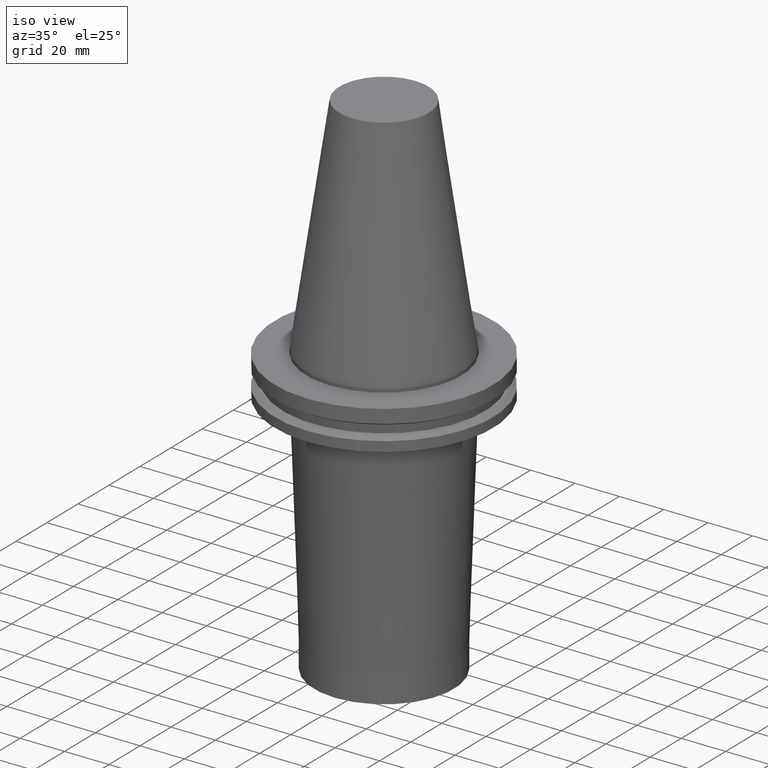
[diagram: clean part render]
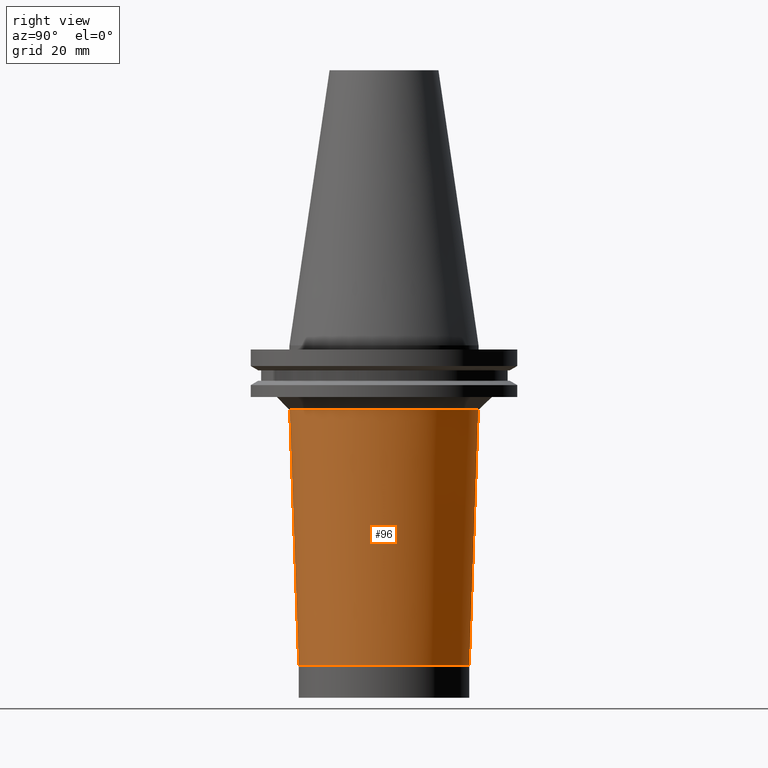
[diagram: tour spotlight — one face highlighted and labeled with its STEP entity id]
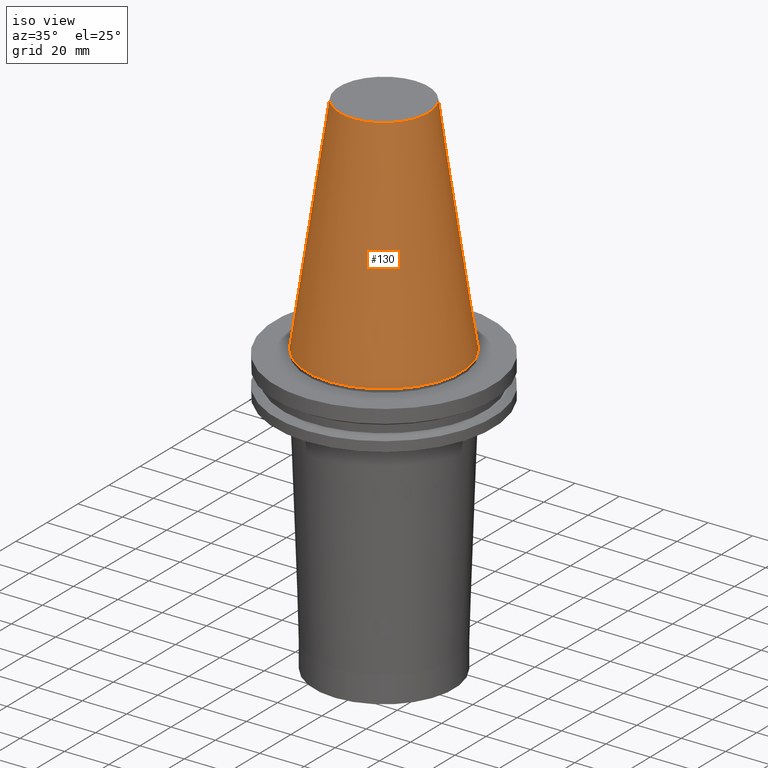
[diagram: tour spotlight — one face highlighted and labeled with its STEP entity id]
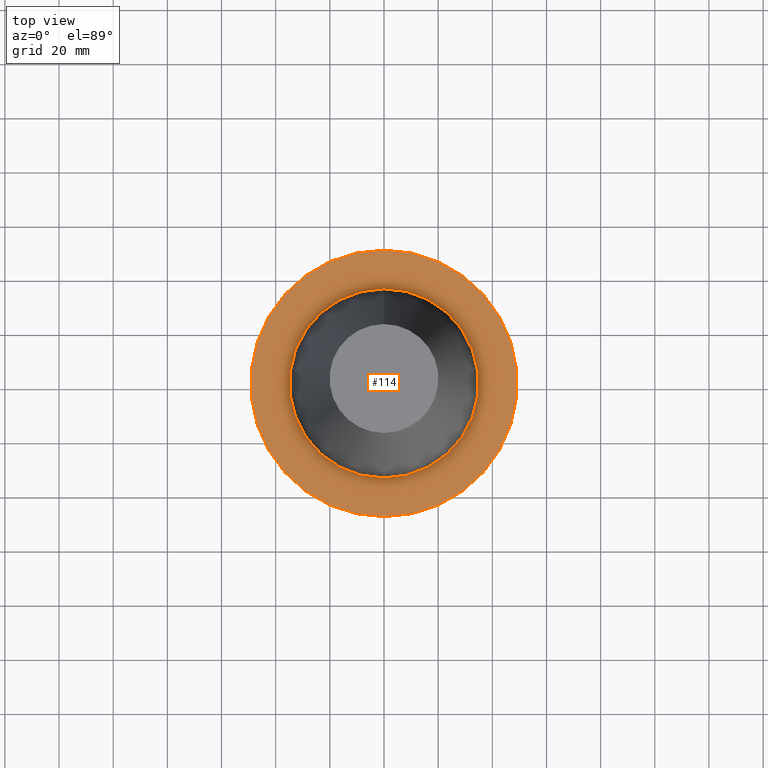
[diagram: tour spotlight — one face highlighted and labeled with its STEP entity id]
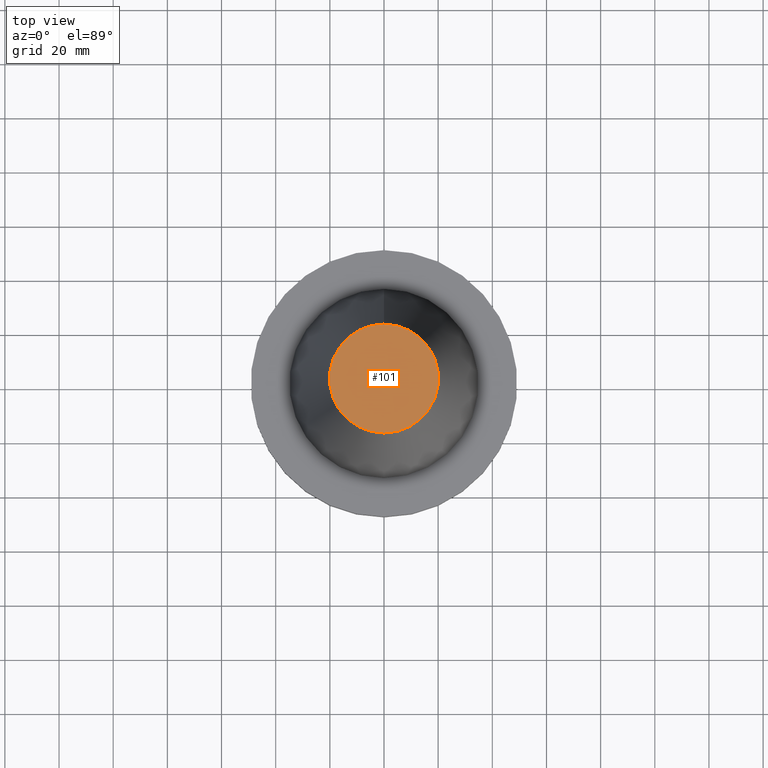
[diagram: tour spotlight — one face highlighted and labeled with its STEP entity id]
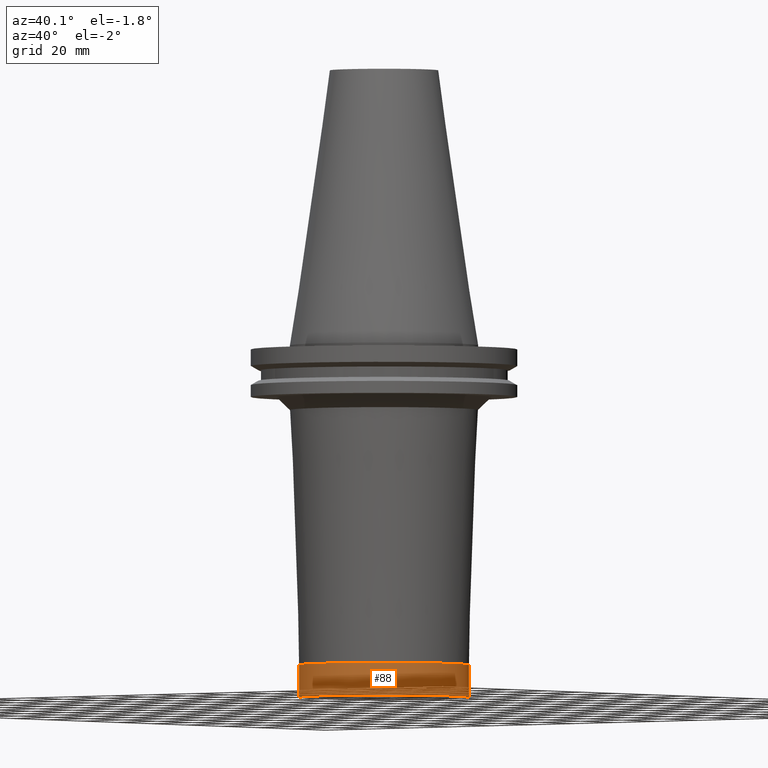
[diagram: tour spotlight — one face highlighted and labeled with its STEP entity id]
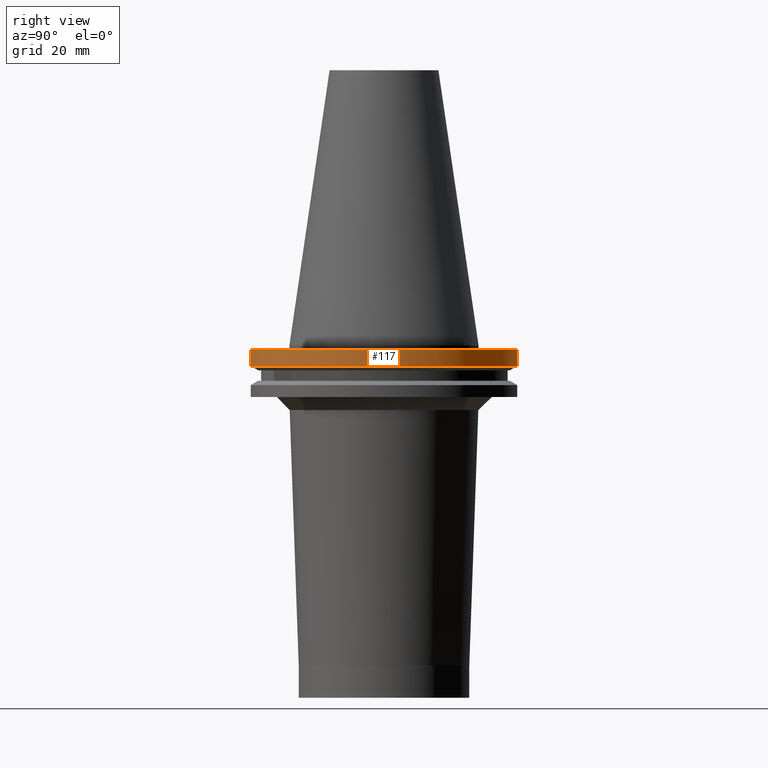
[diagram: tour spotlight — one face highlighted and labeled with its STEP entity id]
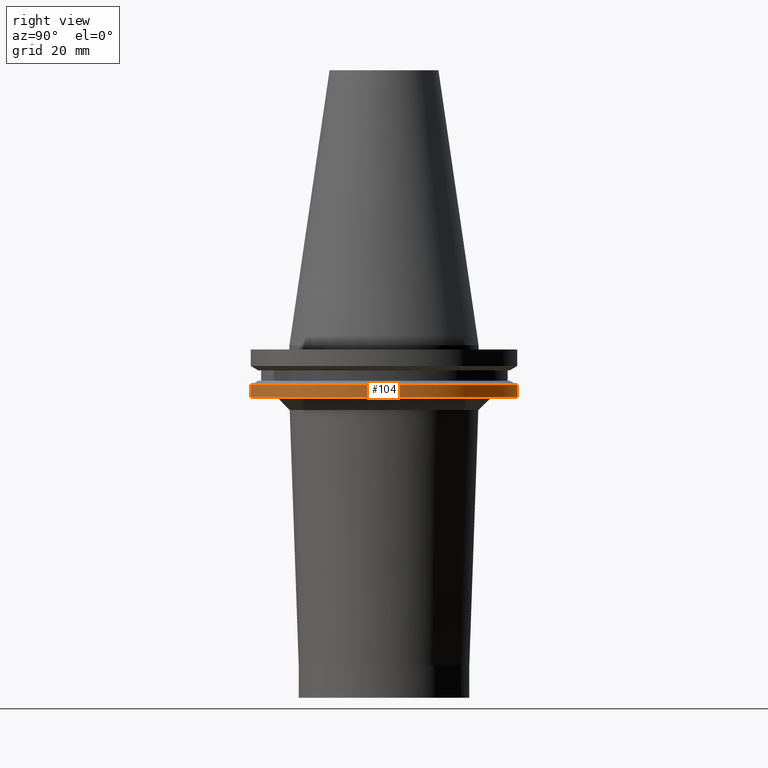
[diagram: tour spotlight — one face highlighted and labeled with its STEP entity id]
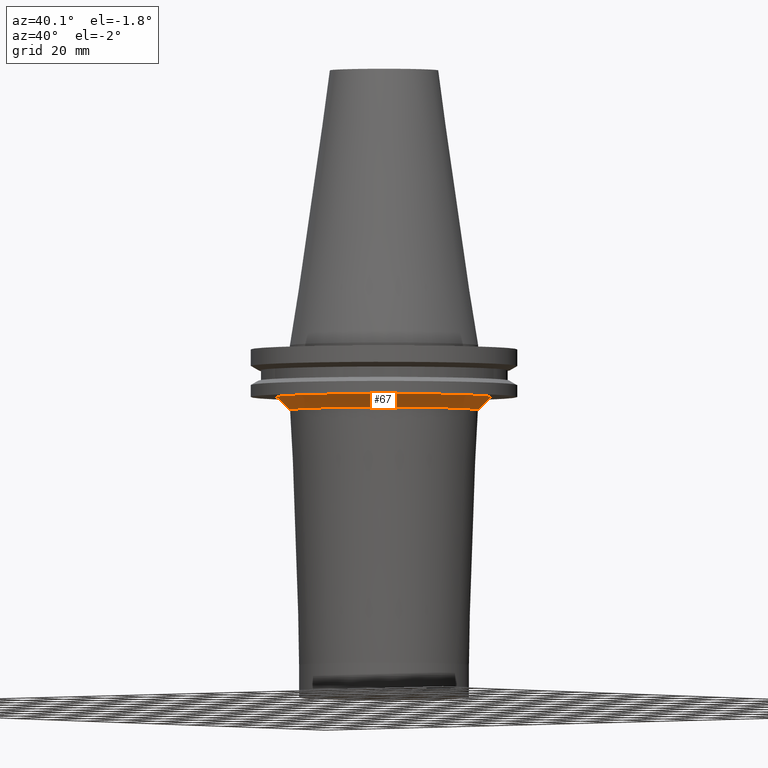
[diagram: tour spotlight — one face highlighted and labeled with its STEP entity id]
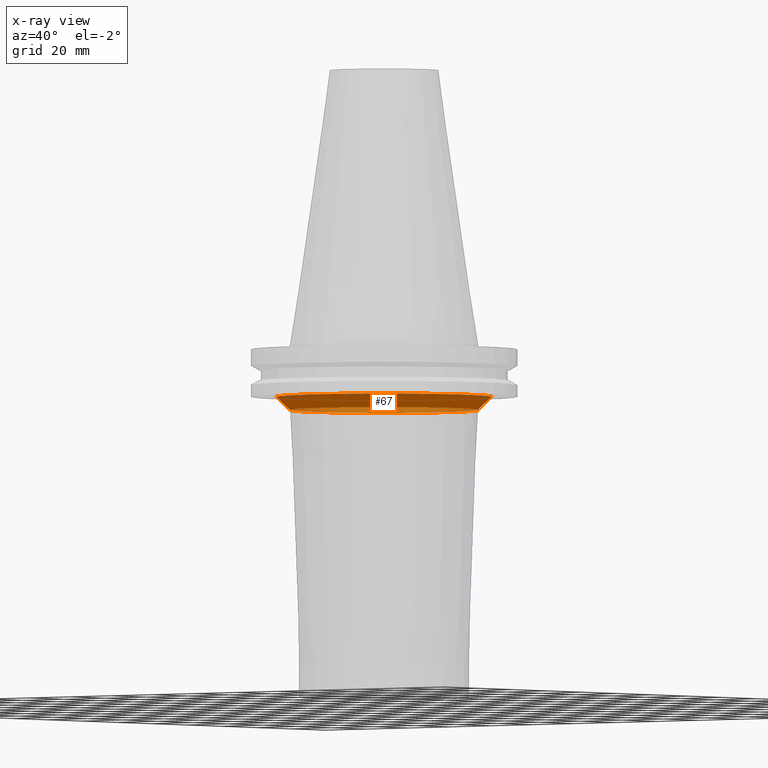
[diagram: x-ray of the same camera — body ghosted, this tour face saturated]
A machine part: a face-by-face anatomy tour. The part has 16 B-rep faces; the first image is the clean iso view, then the 8 largest visible faces are spotlighted one at a time (largest first), each with its STEP entity span.

Face 1 — right view, entity #96. In plain terms, the highlighted conical surface has half-angle 2.024 deg.
Definition (entity closure, byte-faithful):
#59=EDGE_CURVE('Unnamed[1]',#158,#158,#159,.T.);
#90=EDGE_CURVE('Unnamed[1]',#206,#206,#207,.T.);
#96=ADVANCED_FACE('Unnamed[1]',(#215,#216),#217,.T.);
#158=VERTEX_POINT('',#292);
#159=CIRCLE('',#293,34.8299076510828);
#206=VERTEX_POINT('',#353);
#207=CIRCLE('',#354,31.5);
#215=FACE_BOUND('',#364,.T.);
#216=FACE_BOUND('',#365,.T.);
#217=CONICAL_SURFACE('',#366,33.1649538255414,0.0353246636794449);
#292=CARTESIAN_POINT('',(1.46182496598705E-015,34.8299076510828,-23.8734134120112));
#293=AXIS2_PLACEMENT_3D('',#448,#449,#450);
#353=CARTESIAN_POINT('',(7.23153934897916E-015,31.4999999999999,-118.100000000229));
#354=AXIS2_PLACEMENT_3D('',#501,#502,#503);
#364=EDGE_LOOP('',(#511));
#365=EDGE_LOOP('',(#512));
#366=AXIS2_PLACEMENT_3D('',#513,#514,#515);
#448=CARTESIAN_POINT('',(1.46182496598705E-015,-1.1154871649973E-014,-23.8734134120111));
#449=DIRECTION('',(6.12323399573677E-017,-1.22476298162836E-016,-1.0));
#450=DIRECTION('',(2.6723575950577E-033,1.0,-1.22476298162836E-016));
#501=CARTESIAN_POINT('',(7.23153934897916E-015,-2.26953951638179E-014,-118.100000000229));
#502=DIRECTION('',(6.12323399573676E-017,-1.22476298162836E-016,-1.0));
#503=DIRECTION('',(2.6723575950577E-033,1.0,-1.22476298162836E-016));
#511=ORIENTED_EDGE('',*,*,#90,.F.);
#512=ORIENTED_EDGE('',*,*,#59,.T.);
#513=CARTESIAN_POINT('',(4.3466821574831E-015,-1.69251334068955E-014,-70.9867067061202));
#514=DIRECTION('',(-6.12323399573676E-017,1.22476298162836E-016,1.0));
#515=DIRECTION('',(2.6723575950577E-033,1.0,-1.22476298162836E-016));

Face 2 — iso view, entity #130. In plain terms, the highlighted conical surface has half-angle 8.297 deg.
Definition (entity closure, byte-faithful):
#98=EDGE_CURVE('Unnamed[1]',#219,#219,#220,.T.);
#106=EDGE_CURVE('Unnamed[1]',#231,#231,#232,.T.);
#130=ADVANCED_FACE('Unnamed[1]',(#267,#268),#269,.T.);
#219=VERTEX_POINT('',#369);
#220=CIRCLE('',#370,34.925);
#231=VERTEX_POINT('',#384);
#232=CIRCLE('',#385,20.1083333297217);
#267=FACE_BOUND('',#428,.T.);
#268=FACE_BOUND('',#429,.T.);
#269=CONICAL_SURFACE('',#430,27.5166666648608,0.144812498273746);
#369=CARTESIAN_POINT('',(-4.30483861169435E-031,34.925,4.27707894602213E-015));
#370=AXIS2_PLACEMENT_3D('',#516,#517,#518);
#384=CARTESIAN_POINT('',(-6.22120573966855E-015,20.1083333297217,101.6));
#385=AXIS2_PLACEMENT_3D('',#530,#531,#532);
#428=EDGE_LOOP('',(#568));
#429=EDGE_LOOP('',(#569));
#430=AXIS2_PLACEMENT_3D('',#570,#571,#572);
#516=CARTESIAN_POINT('',(1.01454222052553E-046,-8.23094435075886E-015,-1.00799996531168E-030));
#517=DIRECTION('',(6.12323399573676E-017,-1.22476298162836E-016,-1.0));
#518=DIRECTION('',(2.6723575950577E-033,1.0,-1.22476298162836E-016));
#530=CARTESIAN_POINT('',(-6.22120573966855E-015,4.21264754258532E-015,101.6));
#531=DIRECTION('',(6.12323399573677E-017,-1.22476298162836E-016,-1.0));
#532=DIRECTION('',(2.6723575950577E-033,1.0,-1.22476298162836E-016));
#568=ORIENTED_EDGE('',*,*,#98,.F.);
#569=ORIENTED_EDGE('',*,*,#106,.T.);
#570=CARTESIAN_POINT('',(-3.11060286983428E-015,-2.00914840408677E-015,50.8));
#571=DIRECTION('',(6.12323399573677E-017,-1.22476298162836E-016,-1.0));
#572=DIRECTION('',(2.6723575950577E-033,1.0,-1.22476298162836E-016));

Face 3 — top view, entity #114. In plain terms, the highlighted planar face has unit normal (-0, -0, 1).
Definition (entity closure, byte-faithful):
#61=EDGE_CURVE('Unnamed[1]',#161,#161,#162,.T.);
#114=ADVANCED_FACE('Unnamed[1]',(#243,#244),#245,.T.);
#135=EDGE_CURVE('Unnamed[1]',#276,#276,#277,.T.);
#161=VERTEX_POINT('',#296);
#162=CIRCLE('',#297,34.925);
#243=FACE_OUTER_BOUND('',#399,.T.);
#244=FACE_BOUND('',#400,.T.);
#245=PLANE('',#401);
#276=VERTEX_POINT('',#439);
#277=CIRCLE('',#440,49.2125);
#296=CARTESIAN_POINT('',(9.18485099360511E-017,34.925,-1.5));
#297=AXIS2_PLACEMENT_3D('',#451,#452,#453);
#399=EDGE_LOOP('',(#543));
#400=EDGE_LOOP('',(#544));
#401=AXIS2_PLACEMENT_3D('',#545,#546,#547);
#439=CARTESIAN_POINT('',(9.18485099360509E-017,49.2125,-1.49999999999999));
#440=AXIS2_PLACEMENT_3D('',#579,#580,#581);
#451=CARTESIAN_POINT('',(9.18485099360515E-017,-8.41465879800311E-015,-1.5));
#452=DIRECTION('',(6.12323399573676E-017,-1.22476298162836E-016,-1.0));
#453=DIRECTION('',(2.6723575950577E-033,1.0,-1.22476298162836E-016));
#543=ORIENTED_EDGE('',*,*,#135,.F.);
#544=ORIENTED_EDGE('',*,*,#61,.T.);
#545=CARTESIAN_POINT('',(9.1848509936051E-017,42.06875,-1.49999999999999));
#546=DIRECTION('',(-6.12323399573677E-017,-1.22464679914735E-016,1.0));
#547=DIRECTION('',(1.23259516440783E-032,-1.0,-1.22464679914735E-016));
#579=CARTESIAN_POINT('',(9.18485099360515E-017,-8.41465879800311E-015,-1.5));
#580=DIRECTION('',(6.12323399573677E-017,-1.22476298162836E-016,-1.0));
#581=DIRECTION('',(2.6723575950577E-033,1.0,-1.22476298162836E-016));

Face 4 — top view, entity #101. In plain terms, the highlighted planar face has unit normal (-0, -0, 1).
Definition (entity closure, byte-faithful):
#101=ADVANCED_FACE('Unnamed[1]',(#223),#224,.T.);
#106=EDGE_CURVE('Unnamed[1]',#231,#231,#232,.T.);
#223=FACE_OUTER_BOUND('',#374,.T.);
#224=PLANE('',#375);
#231=VERTEX_POINT('',#384);
#232=CIRCLE('',#385,20.1083333297217);
#374=EDGE_LOOP('',(#520));
#375=AXIS2_PLACEMENT_3D('',#521,#522,#523);
#384=CARTESIAN_POINT('',(-6.22120573966855E-015,20.1083333297217,101.6));
#385=AXIS2_PLACEMENT_3D('',#530,#531,#532);
#520=ORIENTED_EDGE('',*,*,#106,.F.);
#521=CARTESIAN_POINT('',(-6.22120573966855E-015,10.0541666648608,101.6));
#522=DIRECTION('',(-6.12323399573677E-017,-1.22464679914735E-016,1.0));
#523=DIRECTION('',(1.23259516440783E-032,-1.0,-1.22464679914735E-016));
#530=CARTESIAN_POINT('',(-6.22120573966855E-015,4.21264754258532E-015,101.6));
#531=DIRECTION('',(6.12323399573677E-017,-1.22476298162836E-016,-1.0));
#532=DIRECTION('',(2.6723575950577E-033,1.0,-1.22476298162836E-016));

Face 5 — auxiliary view, entity #88. In plain terms, the highlighted cylindrical surface (bore or boss wall) has radius 31.5 mm, axis along (0, -0, -1).
Definition (entity closure, byte-faithful):
#73=EDGE_CURVE('Unnamed[1]',#179,#179,#180,.T.);
#88=ADVANCED_FACE('Unnamed[1]',(#202,#203),#204,.T.);
#90=EDGE_CURVE('Unnamed[1]',#206,#206,#207,.T.);
#179=VERTEX_POINT('',#319);
#180=CIRCLE('',#320,31.4999999999999);
#202=FACE_BOUND('',#348,.T.);
#203=FACE_BOUND('',#349,.T.);
#204=CYLINDRICAL_SURFACE('',#350,31.4999999999999);
#206=VERTEX_POINT('',#353);
#207=CIRCLE('',#354,31.5);
#319=CARTESIAN_POINT('',(7.96632742845342E-015,31.4999999999999,-130.099999999998));
#320=AXIS2_PLACEMENT_3D('',#471,#472,#473);
#348=EDGE_LOOP('',(#496));
#349=EDGE_LOOP('',(#497));
#350=AXIS2_PLACEMENT_3D('',#498,#499,#500);
#353=CARTESIAN_POINT('',(7.23153934897916E-015,31.4999999999999,-118.100000000229));
#354=AXIS2_PLACEMENT_3D('',#501,#502,#503);
#471=CARTESIAN_POINT('',(7.96632742845342E-015,-2.41651107417437E-014,-130.099999999998));
#472=DIRECTION('',(6.12323399573677E-017,-1.22476298162836E-016,-1.0));
#473=DIRECTION('',(2.6723575950577E-033,1.0,-1.22476298162836E-016));
#496=ORIENTED_EDGE('',*,*,#73,.F.);
#497=ORIENTED_EDGE('',*,*,#90,.T.);
#498=CARTESIAN_POINT('',(7.59893338871629E-015,-2.34302529527808E-014,-124.100000000114));
#499=DIRECTION('',(6.12323399573677E-017,-1.22476298162836E-016,-1.0));
#500=DIRECTION('',(2.6723575950577E-033,1.0,-1.22476298162836E-016));
#501=CARTESIAN_POINT('',(7.23153934897916E-015,-2.26953951638179E-014,-118.100000000229));
#502=DIRECTION('',(6.12323399573676E-017,-1.22476298162836E-016,-1.0));
#503=DIRECTION('',(2.6723575950577E-033,1.0,-1.22476298162836E-016));

Face 6 — right view, entity #117. In plain terms, the highlighted cylindrical surface (bore or boss wall) has radius 49.2125 mm, axis along (0, -0, -1).
Definition (entity closure, byte-faithful):
#117=ADVANCED_FACE('Unnamed[1]',(#248,#249),#250,.T.);
#124=EDGE_CURVE('Unnamed[1]',#260,#260,#261,.T.);
#135=EDGE_CURVE('Unnamed[1]',#276,#276,#277,.T.);
#248=FACE_BOUND('',#405,.T.);
#249=FACE_BOUND('',#406,.T.);
#250=CYLINDRICAL_SURFACE('',#407,49.2125);
#260=VERTEX_POINT('',#420);
#261=CIRCLE('',#421,49.2125);
#276=VERTEX_POINT('',#439);
#277=CIRCLE('',#440,49.2125);
#405=EDGE_LOOP('',(#549));
#406=EDGE_LOOP('',(#550));
#407=AXIS2_PLACEMENT_3D('',#551,#552,#553);
#420=CARTESIAN_POINT('',(4.64988177918915E-016,49.2125,-7.59383323));
#421=AXIS2_PLACEMENT_3D('',#563,#564,#565);
#439=CARTESIAN_POINT('',(9.18485099360509E-017,49.2125,-1.49999999999999));
#440=AXIS2_PLACEMENT_3D('',#579,#580,#581);
#549=ORIENTED_EDGE('',*,*,#124,.F.);
#550=ORIENTED_EDGE('',*,*,#135,.T.);
#551=CARTESIAN_POINT('',(2.78418343927483E-016,-8.78783386581915E-015,-4.54691661499999));
#552=DIRECTION('',(6.12323399573677E-017,-1.22476298162836E-016,-1.0));
#553=DIRECTION('',(2.6723575950577E-033,1.0,-1.22476298162836E-016));
#563=CARTESIAN_POINT('',(4.64988177918915E-016,-9.16100893363519E-015,-7.59383322999999));
#564=DIRECTION('',(6.12323399573677E-017,-1.22476298162836E-016,-1.0));
#565=DIRECTION('',(2.6723575950577E-033,1.0,-1.22476298162836E-016));
#579=CARTESIAN_POINT('',(9.18485099360515E-017,-8.41465879800311E-015,-1.5));
#580=DIRECTION('',(6.12323399573677E-017,-1.22476298162836E-016,-1.0));
#581=DIRECTION('',(2.6723575950577E-033,1.0,-1.22476298162836E-016));

Face 7 — right view, entity #104. In plain terms, the highlighted cylindrical surface (bore or boss wall) has radius 49.2125 mm, axis along (0, -0, -1).
Definition (entity closure, byte-faithful):
#80=EDGE_CURVE('Unnamed[1]',#190,#190,#191,.T.);
#104=ADVANCED_FACE('Unnamed[1]',(#227,#228),#229,.T.);
#108=EDGE_CURVE('Unnamed[1]',#234,#234,#235,.T.);
#190=VERTEX_POINT('',#333);
#191=CIRCLE('',#334,49.2125);
#227=FACE_BOUND('',#379,.T.);
#228=FACE_BOUND('',#380,.T.);
#229=CYLINDRICAL_SURFACE('',#381,49.2125);
#234=VERTEX_POINT('',#388);
#235=CIRCLE('',#389,49.2125);
#333=CARTESIAN_POINT('',(1.16647607618785E-015,49.2125,-19.05));
#334=AXIS2_PLACEMENT_3D('',#483,#484,#485);
#379=EDGE_LOOP('',(#525));
#380=EDGE_LOOP('',(#526));
#381=AXIS2_PLACEMENT_3D('',#527,#528,#529);
#388=CARTESIAN_POINT('',(8.96819062732941E-016,49.2125,-14.64616677));
#389=AXIS2_PLACEMENT_3D('',#533,#534,#535);
#483=CARTESIAN_POINT('',(1.16647607618785E-015,-1.05641178307609E-014,-19.05));
#484=DIRECTION('',(6.12323399573676E-017,-1.22476298162836E-016,-1.0));
#485=DIRECTION('',(2.6723575950577E-033,1.0,-1.22476298162836E-016));
#525=ORIENTED_EDGE('',*,*,#80,.F.);
#526=ORIENTED_EDGE('',*,*,#108,.T.);
#527=CARTESIAN_POINT('',(1.0316475694604E-015,-1.02944352348925E-014,-16.848083385));
#528=DIRECTION('',(6.12323399573676E-017,-1.22476298162836E-016,-1.0));
#529=DIRECTION('',(2.6723575950577E-033,1.0,-1.22476298162836E-016));
#533=CARTESIAN_POINT('',(8.96819062732941E-016,-1.0024752639024E-014,-14.64616677));
#534=DIRECTION('',(6.12323399573676E-017,-1.22476298162836E-016,-1.0));
#535=DIRECTION('',(2.6723575950577E-033,1.0,-1.22476298162836E-016));

Face 8 — auxiliary view, entity #67. An x-ray twin of the same camera follows (body ghosted, this face saturated) — the face is partly hidden behind the body. In plain terms, the highlighted conical surface has half-angle 46.116 deg.
Definition (entity closure, byte-faithful):
#59=EDGE_CURVE('Unnamed[1]',#158,#158,#159,.T.);
#67=ADVANCED_FACE('Unnamed[1]',(#169,#170),#171,.T.);
#119=EDGE_CURVE('Unnamed[1]',#252,#252,#253,.T.);
#158=VERTEX_POINT('',#292);
#159=CIRCLE('',#293,34.8299076510828);
#169=FACE_BOUND('',#306,.T.);
#170=FACE_BOUND('',#307,.T.);
#171=CONICAL_SURFACE('',#308,37.3374018589758,0.804867869938261);
#252=VERTEX_POINT('',#410);
#253=CIRCLE('',#411,39.8448960668688);
#292=CARTESIAN_POINT('',(1.46182496598705E-015,34.8299076510828,-23.8734134120112));
#293=AXIS2_PLACEMENT_3D('',#448,#449,#450);
#306=EDGE_LOOP('',(#460));
#307=EDGE_LOOP('',(#461));
#308=AXIS2_PLACEMENT_3D('',#462,#463,#464);
#410=CARTESIAN_POINT('',(1.16647607618785E-015,39.8448960668688,-19.05));
#411=AXIS2_PLACEMENT_3D('',#554,#555,#556);
#448=CARTESIAN_POINT('',(1.46182496598705E-015,-1.1154871649973E-014,-23.8734134120111));
#449=DIRECTION('',(6.12323399573677E-017,-1.22476298162836E-016,-1.0));
#450=DIRECTION('',(2.6723575950577E-033,1.0,-1.22476298162836E-016));
#460=ORIENTED_EDGE('',*,*,#59,.F.);
#461=ORIENTED_EDGE('',*,*,#119,.T.);
#462=CARTESIAN_POINT('',(1.31415052108745E-015,-1.08594947403669E-014,-21.4617067060056));
#463=DIRECTION('',(-6.12323399573677E-017,1.22476298162836E-016,1.0));
#464=DIRECTION('',(2.6723575950577E-033,1.0,-1.22476298162836E-016));
#554=CARTESIAN_POINT('',(1.16647607618785E-015,-1.05641178307609E-014,-19.05));
#555=DIRECTION('',(6.12323399573677E-017,-1.22476298162836E-016,-1.0));
#556=DIRECTION('',(2.6723575950577E-033,1.0,-1.22476298162836E-016));